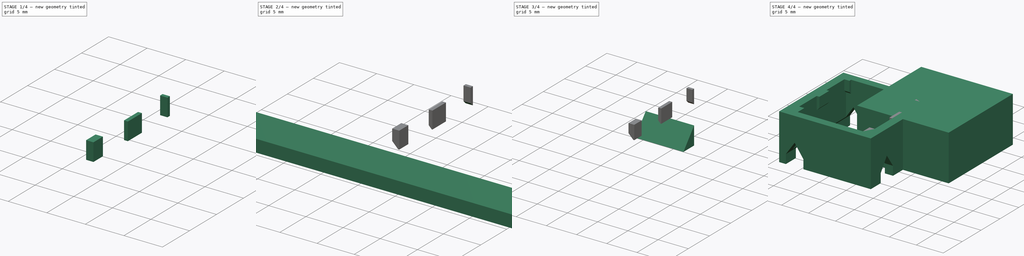
[diagram: build sequence overview — one tinted view per stage of 4, left to right]
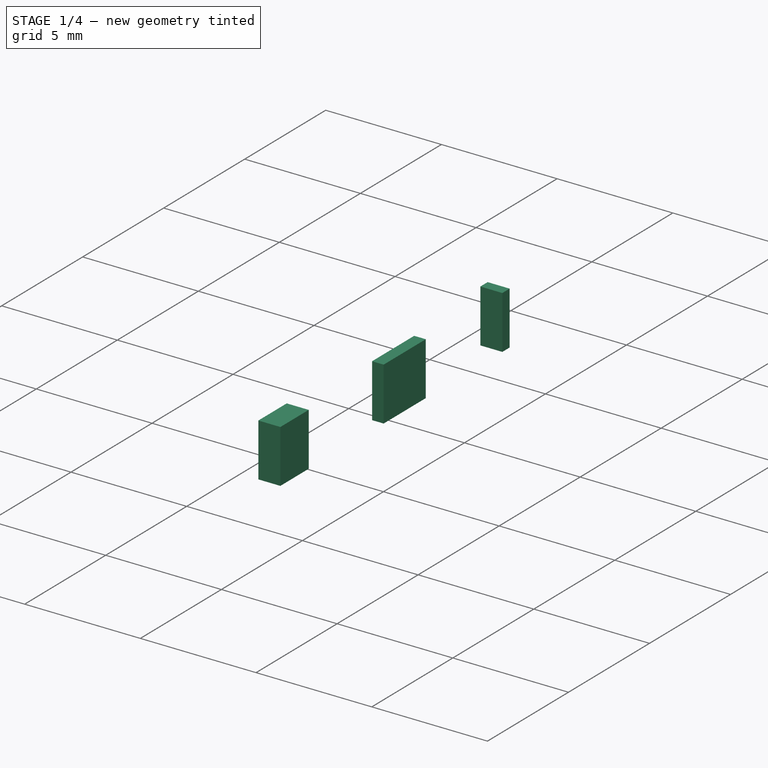
[diagram: stage 1 of 4 — iso view after this stage's code; geometry added in this stage tinted green]
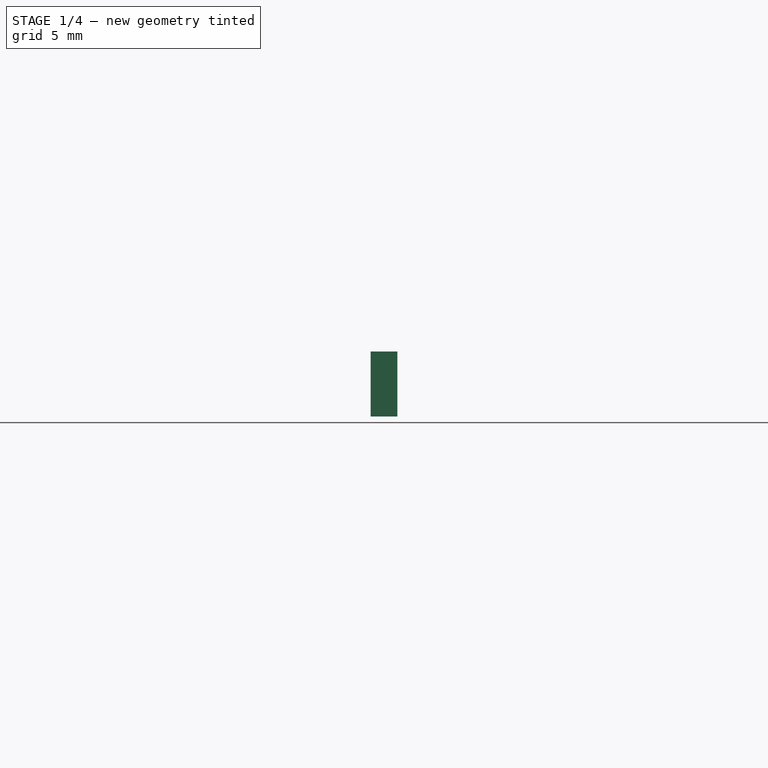
[diagram: stage 1 of 4 — front view after this stage's code; geometry added in this stage tinted green]
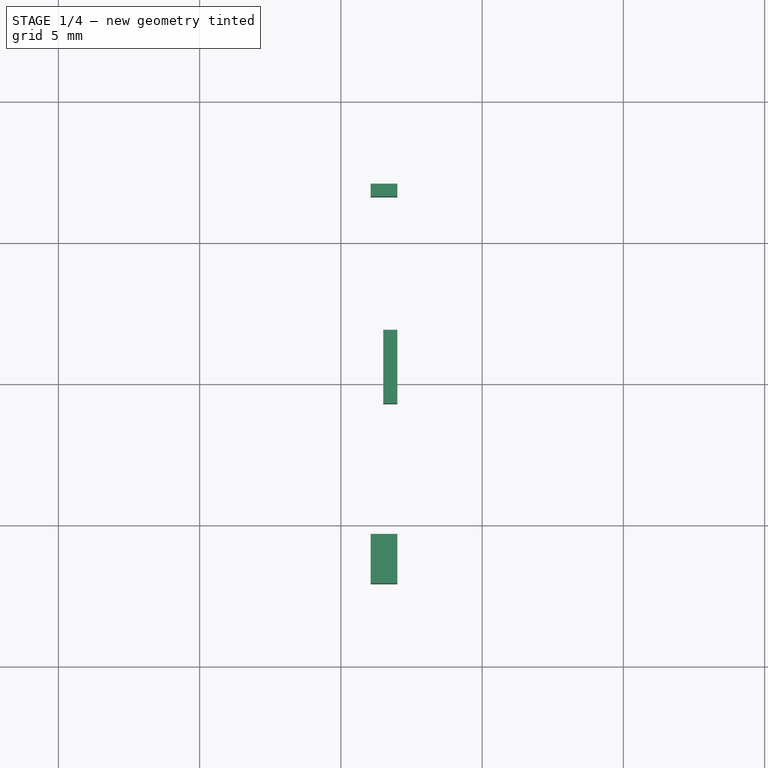
[diagram: stage 1 of 4 — top view after this stage's code; geometry added in this stage tinted green]
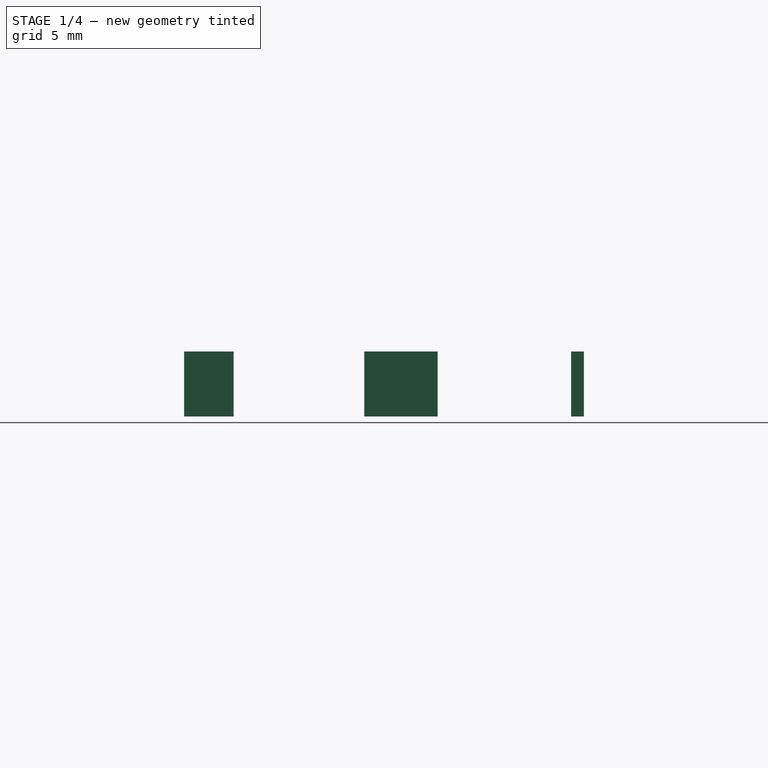
[diagram: stage 1 of 4 — right view after this stage's code; geometry added in this stage tinted green]
FCSTD DOCUMENT  (FreeCAD 1.0R39109 (Git))
Label: milli-ergo-drafting
License: All rights reserved
LicenseURL: https://en.wikipedia.org/wiki/All_rights_reserved
objects: Sketcher::SketchObject×5, Part::Extrusion×4, Part::Cut×3, Part::FeaturePython×2, PartDesign::AdditiveBox×1, Spreadsheet::Sheet×1, PartDesign::Body×1, Part::Box×1, Part::Chamfer×1, Part::Mirroring×1, App::Link×1, Part::MultiFuse×1, App::Part×1
note: 27 computed .brp shape members not serialized (recipe doc carries the construction recipe); baked Part::Feature solids carry a one-line shape summary decoded from their .brp

FEATURE [Spreadsheet::Sheet] Spreadsheet  label="ref"
  cells = B2(x)==8.5 * 2 mm; B3(y)==17 mm; B4(z)==8.5 mm
FEATURE [Sketcher::SketchObject] Sketch
  ArcFitTolerance = 1e-06
  AttachmentSupport = -> [Box]
  ExternalGeometry = -> [Box]
  FullyConstrained = false
  MakeInternals = false
  MapMode = 5
  Placement = pos=(0,0,8.5) rot=(0,0,1;0rad)
  sketch-geometry (12):
    g0: LineSegment [constr] StartX=0 StartY=17 StartZ=0 EndX=0 EndY=0 EndZ=0
    g1: LineSegment [constr] StartX=0 StartY=0 StartZ=0 EndX=17 EndY=0 EndZ=0
    g2: LineSegment [constr] StartX=17 StartY=0 StartZ=0 EndX=17 EndY=17 EndZ=0
    g3: LineSegment [constr] StartX=17 StartY=17 StartZ=0 EndX=0 EndY=17 EndZ=0
    g4: LineSegment StartX=15.5 StartY=15.5 StartZ=0 EndX=1.5 EndY=15.5 EndZ=0
    g5: LineSegment StartX=1.5 StartY=15.5 StartZ=0 EndX=1.5 EndY=1.5 EndZ=0
    g6: LineSegment StartX=1.5 StartY=1.5 StartZ=0 EndX=15.5 EndY=1.5 EndZ=0
    g7: LineSegment StartX=15.5 StartY=1.5 StartZ=0 EndX=15.5 EndY=15.5 EndZ=0
    g8: LineSegment [constr] StartX=12.5 StartY=15.5 StartZ=0 EndX=12.5 EndY=17 EndZ=0
    g9: LineSegment [constr] StartX=1.5 StartY=12.4999 StartZ=0 EndX=0 EndY=12.4999 EndZ=0
    g10: LineSegment [constr] StartX=1.5 StartY=1.5 StartZ=0 EndX=1.5 EndY=0 EndZ=0
    g11: LineSegment [constr] StartX=15.5 StartY=1.50013 StartZ=0 EndX=17 EndY=1.50013 EndZ=0
  constraints (34):
    c: Coincident(g0,g1)
    c: Coincident(g1,g2)
    c: Coincident(g2,g3)
    c: Coincident(g3,g0)
    c: Vertical(g0)
    c: Vertical(g2)
    c: Horizontal(g1)
    c: Horizontal(g3)
    c: Coincident(g0,g-5)
    c: Coincident(g1,g-6)
    c: Coincident(g4,g5)
    c: Coincident(g4,g7)
    c: Coincident(g5,g6)
    c: Coincident(g6,g7)
    c: Perpendicular(g8,g4)
    c: PointOnObject(g8,g4)
    c: PointOnObject(g8,g3)
    c: Perpendicular(g9,g5)
    c: PointOnObject(g9,g5)
    c: PointOnObject(g9,g0)
    c: Perpendicular(g10,g6)
    c: PointOnObject(g10,g6)
    c: PointOnObject(g10,g1)
    c: Perpendicular(g11,g7)
    c: PointOnObject(g11,g7)
    c: PointOnObject(g11,g2)
    c: Parallel(g7,g2)
    c: Parallel(g4,g3)
    c: Parallel(g5,g0)
    c: Equal(g9,g8)
    c: Parallel(g6,g1)
    c: Equal(g10,g8)
    c: Equal(g11,g8)
    c: Distance(g8) = 1.5
FEATURE [PartDesign::Body] Body
  AllowCompound = false
  Group = -> [Box,Sketch]
  Origin = -> Origin
  Tip = -> Box
FEATURE [Part::Box] Box001  label="Cube"
  AttacherType = Attacher::AttachEngine3D
  Height = 8.5
  Length = 17
  Placement = pos=(-8.5,-8.5,0) rot=(0,0,1;0rad)
  Width = 17
  expr: .Placement.Base.x = -<<ref>>.x / 2
  expr: .Placement.Base.y = -<<ref>>.y / 2
  expr: Height = <<ref>>.z
  expr: Length = <<ref>>.x
  expr: Width = <<ref>>.y
FEATURE [Sketcher::SketchObject] Sketch001
  ArcFitTolerance = 1e-06
  AttachmentSupport = -> [Box001]
  ExternalGeometry = -> [Box001]
  FullyConstrained = false
  MakeInternals = false
  MapMode = 5
  Placement = pos=(-8.5,-8.5,8.5) rot=(0,0,1;0rad)
  expr: Constraints[18] = 8.5 - 7
  sketch-geometry (12):
    g0: LineSegment [constr] StartX=17 StartY=17 StartZ=0 EndX=0 EndY=17 EndZ=0
    g1: LineSegment [constr] StartX=0 StartY=17 StartZ=0 EndX=0 EndY=0 EndZ=0
    g2: LineSegment [constr] StartX=0 StartY=0 StartZ=0 EndX=17 EndY=0 EndZ=0
    g3: LineSegment [constr] StartX=17 StartY=0 StartZ=0 EndX=17 EndY=17 EndZ=0
    g4: LineSegment StartX=15.5 StartY=1.425 StartZ=0 EndX=15.5 EndY=15.575 EndZ=0
    g5: LineSegment StartX=15.5 StartY=15.575 StartZ=0 EndX=1.5 EndY=15.575 EndZ=0
    g6: LineSegment StartX=1.5 StartY=15.575 StartZ=0 EndX=1.5 EndY=1.425 EndZ=0
    g7: LineSegment StartX=1.5 StartY=1.425 StartZ=0 EndX=15.5 EndY=1.425 EndZ=0
    g8: LineSegment [constr] StartX=6.97157 StartY=15.575 StartZ=0 EndX=6.97157 EndY=17 EndZ=0
    g9: LineSegment [constr] StartX=6.78822 StartY=1.425 StartZ=0 EndX=6.78822 EndY=0 EndZ=0
    g10: LineSegment [constr] StartX=0 StartY=6.49961 StartZ=0 EndX=1.5 EndY=6.49961 EndZ=0
    g11: LineSegment [constr] StartX=15.5 StartY=11.1537 StartZ=0 EndX=17 EndY=11.1537 EndZ=0
  constraints (35):
    c: Coincident(g0,g1)
    c: Coincident(g1,g2)
    c: Coincident(g2,g3)
    c: Coincident(g3,g0)
    c: Horizontal(g0)
    c: Horizontal(g2)
    c: Vertical(g1)
    c: Vertical(g3)
    c: Coincident(g0,g-4)
    c: Coincident(g1,g-1)
    c: Coincident(g4,g5)
    c: Coincident(g4,g7)
    c: Coincident(g5,g6)
    c: Coincident(g6,g7)
    c: Parallel(g7,g2)
    c: Parallel(g4,g3)
    c: Parallel(g5,g0)
    c: Parallel(g6,g1)
    c: Distance(g3,g4) = 1.5
    c: Distance(g0,g5) = 1.425
    c: PointOnObject(g8,g5)
    c: PointOnObject(g8,g0)
    c: Vertical(g8)
    c: PointOnObject(g9,g7)
    c: PointOnObject(g9,g2)
    c: PointOnObject(g10,g1)
    c: PointOnObject(g10,g6)
    c: Horizontal(g10)
    c: PointOnObject(g11,g4)
    c: PointOnObject(g11,g3)
    c: Horizontal(g11)
    c: Vertical(g9)
    c: Equal(g9,g8)
    c: Equal(g10,g11)
    c: Distance(g10,g10) = 1.5
FEATURE [Part::Extrusion] Extrude
  Base = -> Sketch001
  Dir = (0,0,1)
  DirMode = 2
  FaceMakerClass = Part::FaceMakerBullseye
  FaceMakerMode = 3
  LengthFwd = 10
  LengthRev = 0
  Reversed = true
  Solid = true
  Symmetric = false
FEATURE [Part::Cut] Cut
  Base = -> Box001
  Refine = true
  Tool = -> Extrude
FEATURE [Sketcher::SketchObject] Sketch002
  ArcFitTolerance = 1e-06
  AttachmentSupport = -> [Cut]
  ExternalGeometry = -> [Cut]
  FullyConstrained = true
  MakeInternals = false
  MapMode = 5
  Placement = pos=(0,0,8.5) rot=(0,0,1;0rad)
  sketch-geometry (12):
    g0: LineSegment StartX=7 StartY=7.075 StartZ=0 EndX=6.05 EndY=7.075 EndZ=0
    g1: LineSegment StartX=6.05 StartY=7.075 StartZ=0 EndX=6.05 EndY=6.625 EndZ=0
    g2: LineSegment StartX=6.05 StartY=6.625 StartZ=0 EndX=7 EndY=6.625 EndZ=0
    g3: LineSegment StartX=7 StartY=6.625 StartZ=0 EndX=7 EndY=7.075 EndZ=0
    g4: LineSegment StartX=7 StartY=1.9 StartZ=0 EndX=6.5 EndY=1.9 EndZ=0
    g5: LineSegment StartX=6.5 StartY=1.9 StartZ=0 EndX=6.5 EndY=-0.7 EndZ=0
    g6: LineSegment StartX=6.5 StartY=-0.7 StartZ=0 EndX=7 EndY=-0.7 EndZ=0
    g7: LineSegment StartX=7 StartY=-0.7 StartZ=0 EndX=7 EndY=1.9 EndZ=0
    g8: LineSegment StartX=7 StartY=-7.075 StartZ=0 EndX=7 EndY=-5.325 EndZ=0
    g9: LineSegment StartX=7 StartY=-5.325 StartZ=0 EndX=6.05 EndY=-5.325 EndZ=0
    g10: LineSegment StartX=6.05 StartY=-5.325 StartZ=0 EndX=6.05 EndY=-7.075 EndZ=0
    g11: LineSegment StartX=6.05 StartY=-7.075 StartZ=0 EndX=7 EndY=-7.075 EndZ=0
  constraints (34):
    c: Coincident(g0,g1)
    c: Coincident(g1,g2)
    c: Coincident(g2,g3)
    c: Coincident(g3,g0)
    c: Horizontal(g0)
    c: Horizontal(g2)
    c: Vertical(g1)
    c: Vertical(g3)
    c: Coincident(g0,g-4)
    c: Coincident(g4,g5)
    c: Coincident(g5,g6)
    c: Coincident(g6,g7)
    c: Coincident(g7,g4)
    c: Horizontal(g4)
    c: Horizontal(g6)
    c: Vertical(g5)
    c: Vertical(g7)
    c: PointOnObject(g4,g-4)
    c: Coincident(g8,g9)
    c: Coincident(g9,g10)
    c: Coincident(g10,g11)
    c: Coincident(g11,g8)
    c: Vertical(g8)
    c: Vertical(g10)
    c: Horizontal(g9)
    c: Horizontal(g11)
    c: Coincident(g8,g-5)
    c: Distance(g0,g0) = 0.95
    c: DistanceY(g3,g3) = 0.45
    c: Distance(g4,g4) = 0.5
    c: Vertical(g9,g1)
    c: Distance(g8,g8) = 1.75
    c: DistanceY(g5,g1) = 7.325
    c: Distance(g4,g9) = 7.225
FEATURE [Part::Extrusion] Extrude001
  Base = -> Sketch002
  Dir = (0,0,1)
  DirMode = 2
  FaceMakerClass = Part::FaceMakerSimple
  FaceMakerMode = 0
  LengthFwd = 2.3
  LengthRev = 0
  Reversed = true
  Solid = true
  Symmetric = false
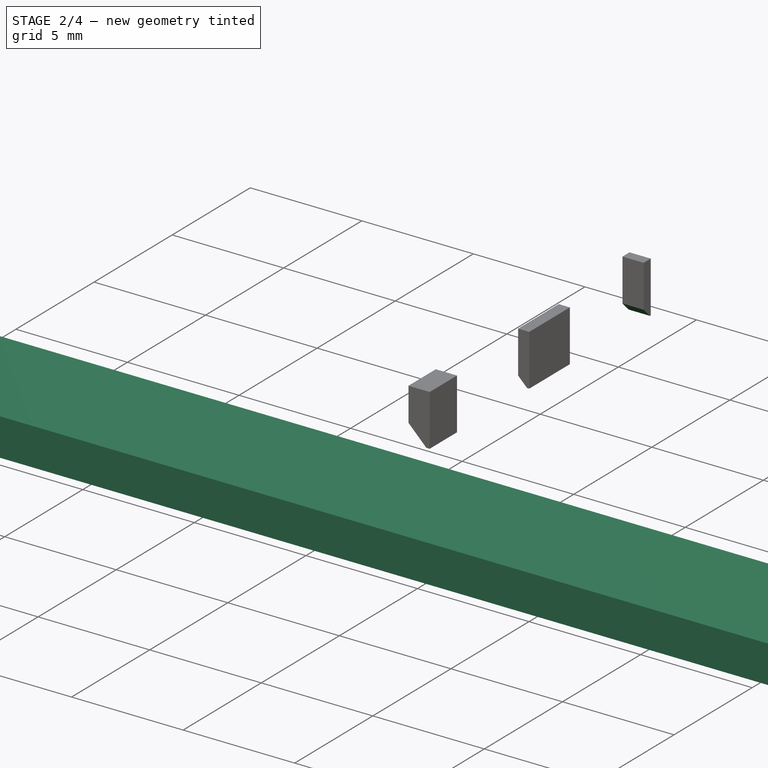
[diagram: stage 2 of 4 — iso view after this stage's code; geometry added in this stage tinted green]
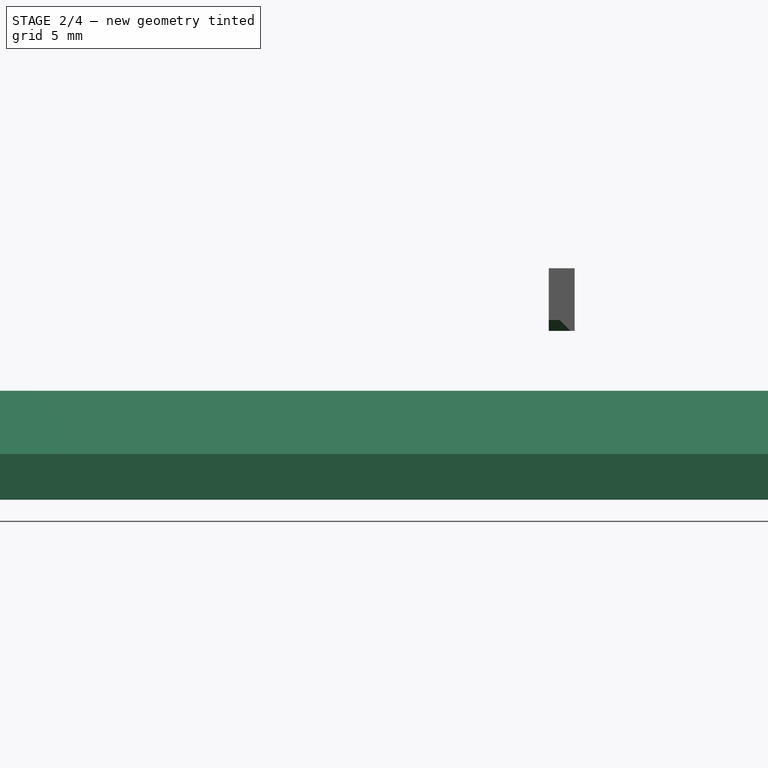
[diagram: stage 2 of 4 — front view after this stage's code; geometry added in this stage tinted green]
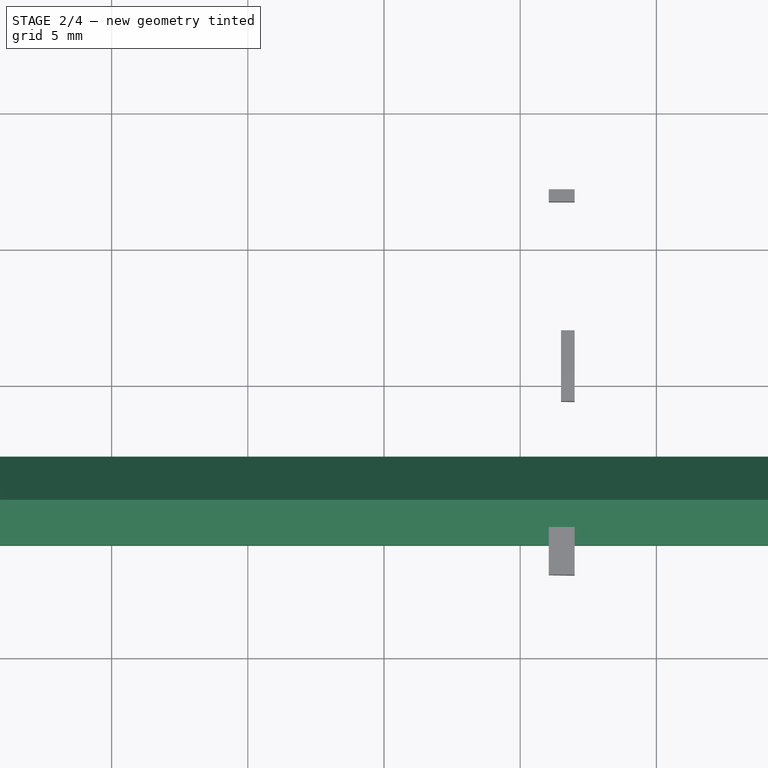
[diagram: stage 2 of 4 — top view after this stage's code; geometry added in this stage tinted green]
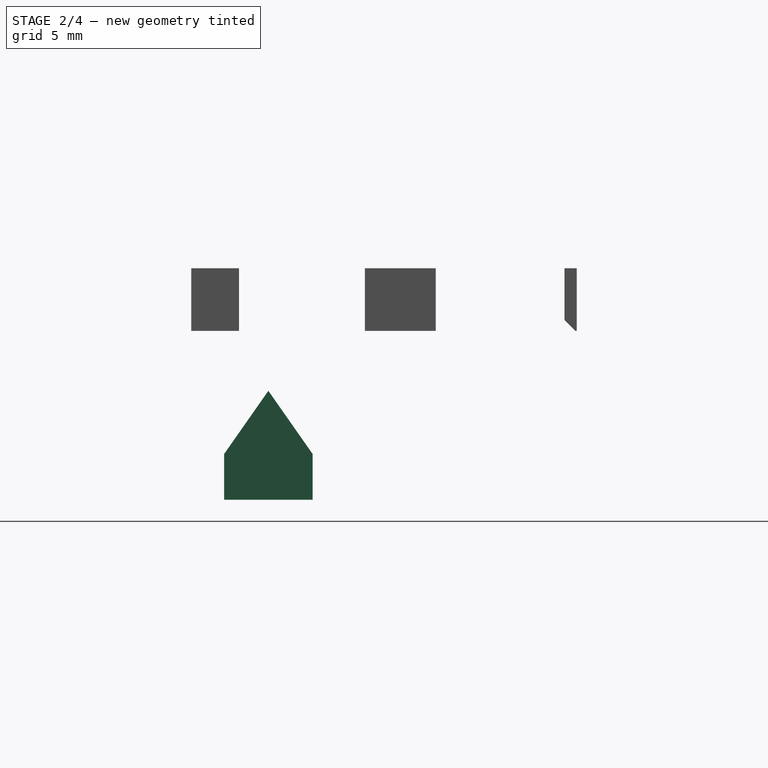
[diagram: stage 2 of 4 — right view after this stage's code; geometry added in this stage tinted green]
FEATURE [Part::Chamfer] Chamfer
  Base = -> Extrude001
  EdgeLinks = -> Extrude001 [Edge10,Edge19,Edge34]
  Edges = 3 edges: [Edge10 r=0.4,Edge19 r=0.4,Edge34 r=0.8]
FEATURE [Sketcher::SketchObject] Sketch004
  ArcFitTolerance = 1e-06
  ExternalGeometry = -> [Cut]
  FullyConstrained = true
  MakeInternals = false
  Placement = pos=(0,0,0) rot=(1,0,0;1.5708rad)
  expr: .Placement.Base.x = 0
  expr: .Placement.Base.y = 0
  sketch-geometry (8):
    g0: LineSegment StartX=-8.5 StartY=0 StartZ=0 EndX=-5.25 EndY=0 EndZ=0
    g1: LineSegment StartX=-5.25 StartY=0 StartZ=0 EndX=-5.25 EndY=1.67926 EndZ=0
    g2: LineSegment StartX=-5.25 StartY=1.67926 StartZ=0 EndX=-6.875 EndY=4 EndZ=0
    g3: LineSegment StartX=-6.875 StartY=4 StartZ=0 EndX=-8.5 EndY=1.67926 EndZ=0
    g4: LineSegment StartX=-8.5 StartY=1.67926 StartZ=0 EndX=-8.5 EndY=0 EndZ=0
    g5: LineSegment [constr] StartX=-8.5 StartY=1.67926 StartZ=0 EndX=-5.25 EndY=1.67926 EndZ=0
    g6: LineSegment [constr] StartX=-5.25 StartY=1.67926 StartZ=0 EndX=-6.875 EndY=1.67926 EndZ=0
    g7: LineSegment [constr] StartX=-6.875 StartY=1.67926 StartZ=0 EndX=-6.875 EndY=4 EndZ=0
  constraints (20):
    c: Coincident(g0,g1)
    c: Vertical(g1)
    c: Coincident(g1,g2)
    c: Coincident(g2,g3)
    c: Coincident(g3,g4)
    c: Coincident(g4,g0)
    c: Vertical(g4)
    c: Coincident(g3,g5)
    c: Coincident(g5,g1)
    c: Horizontal(g5)
    c: Coincident(g5,g6)
    c: Symmetric(g5,g5,g6)
    c: Coincident(g6,g7)
    c: Coincident(g7,g2)
    c: Vertical(g7)
    c: Angle(g2,g5) = 0.959931
    c: DistanceY(g0,g2) = 4
    c: DistanceX(g0,g0) = 3.25
    c: Horizontal(g0)
    c: Coincident(g0,g-4)
FEATURE [Part::Extrusion] Extrude002
  Base = -> Sketch004
  Dir = (0,-1,2e-16)
  DirMode = 2
  FaceMakerClass = Part::FaceMakerBullseye
  FaceMakerMode = 3
  LengthFwd = 50
  LengthRev = 0
  Placement = pos=(0,2.63,0) rot=(0,0,1;1.5708rad)
  Solid = true
  Symmetric = true
  expr: .Placement.Base.x = 0
  expr: .Placement.Base.y = 2.63
FEATURE [Part::FeaturePython] Clone001  label="Chamfer001"  # Draft clone (typed FeaturePython)
  AttacherType = Attacher::AttachEngine3D
  Fuse = false
  Objects = -> [Chamfer]
  Scale = (1,1,1)
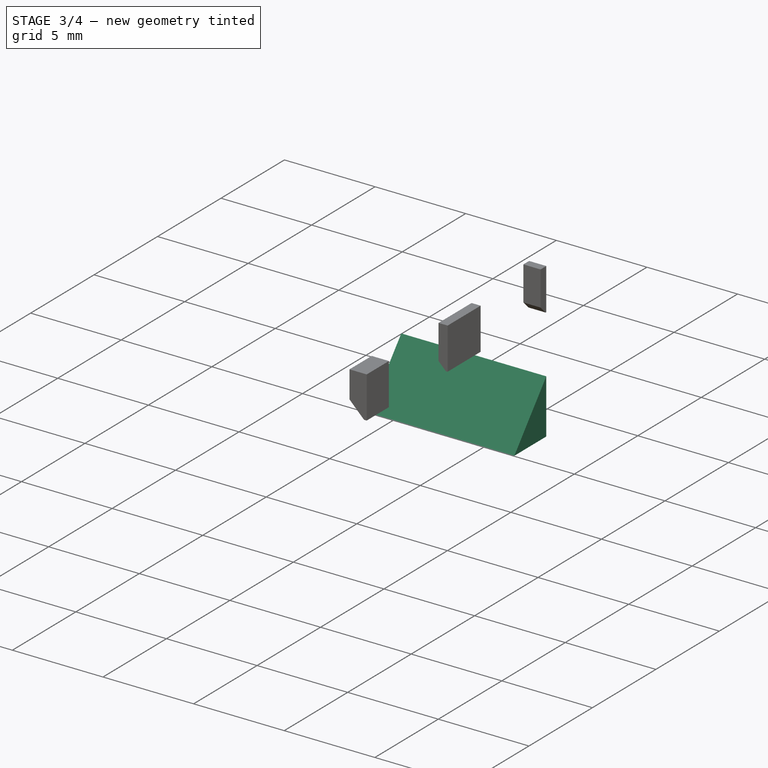
[diagram: stage 3 of 4 — iso view after this stage's code; geometry added in this stage tinted green]
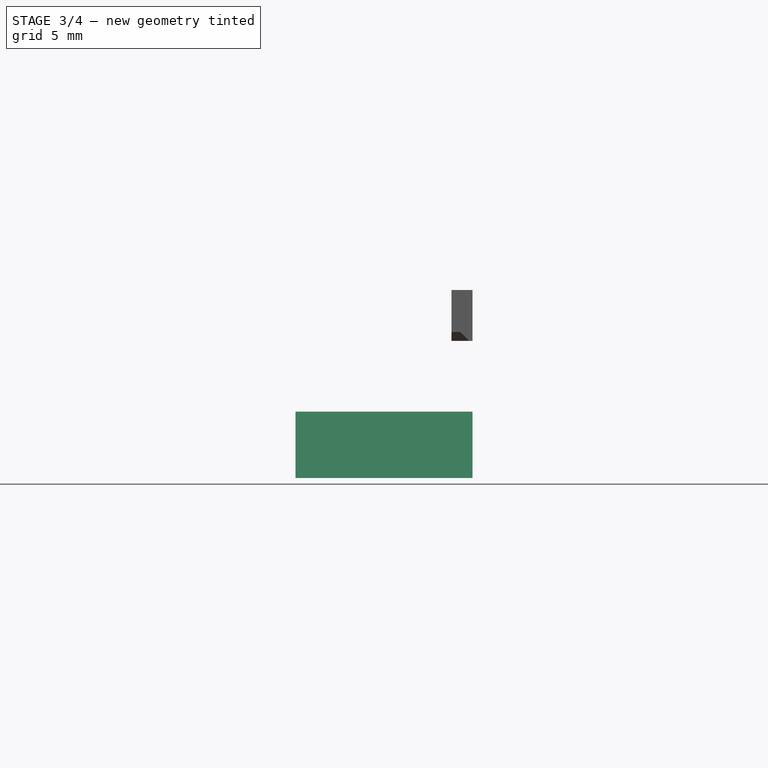
[diagram: stage 3 of 4 — front view after this stage's code; geometry added in this stage tinted green]
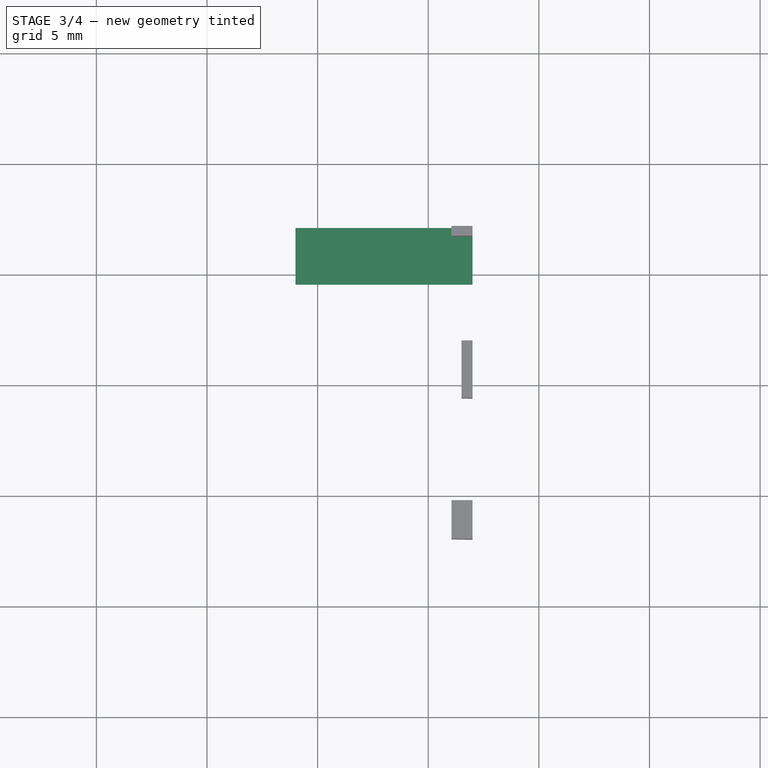
[diagram: stage 3 of 4 — top view after this stage's code; geometry added in this stage tinted green]
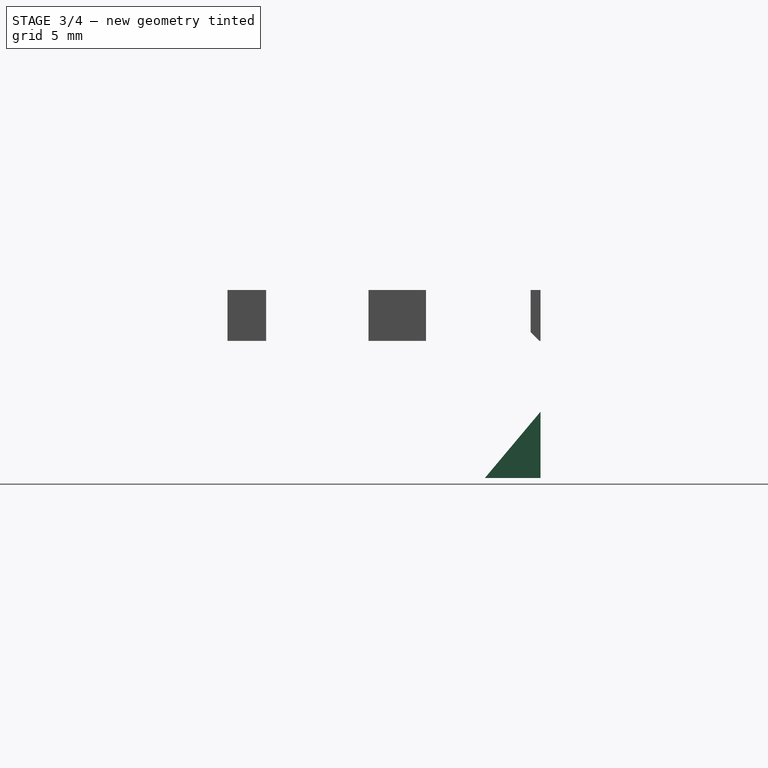
[diagram: stage 3 of 4 — right view after this stage's code; geometry added in this stage tinted green]
FEATURE [App::Link] Link  label="Extrude003"
  LinkPlacement = pos=(1.25,0,0) rot=(0,0,1;0rad)
  LinkedObject = -> Extrude002
  Placement = pos=(1.25,0,0) rot=(0,0,1;0rad)
FEATURE [Part::Cut] Cut001
  Base = -> Cut
  Refine = true
  Tool = -> Extrude002
FEATURE [Part::Cut] Cut002
  Base = -> Cut001
  Refine = true
  Tool = -> Link
FEATURE [Sketcher::SketchObject] Sketch005
  ArcFitTolerance = 1e-06
  AttachmentSupport = -> [Cut002]
  ExternalGeometry = -> [Cut002,Sketch001]
  FullyConstrained = false
  MakeInternals = false
  MapMode = 5
  Placement = pos=(7,0,0) rot=(0.57735,-0.57735,-0.57735;2.0944rad)
  sketch-geometry (5):
    g0: Circle [constr] CenterX=0 CenterY=8.5 CenterZ=0 NormalX=0 NormalY=0 NormalZ=1 AngleXU=0 Radius=2.5
    g1: LineSegment [constr] StartX=-7.075 StartY=3 StartZ=0 EndX=2.95379 EndY=3 EndZ=0
    g2: LineSegment StartX=-7.075 StartY=3 StartZ=0 EndX=-4.5577 EndY=0 EndZ=0
    g3: LineSegment StartX=-7.075 StartY=0 StartZ=0 EndX=-7.075 EndY=3 EndZ=0
    g4: LineSegment StartX=-4.5577 StartY=0 StartZ=0 EndX=-7.075 EndY=0 EndZ=0
  constraints (12):
    c: Diameter(g0) = 5
    c: Symmetric(g-5,g-5,g0)
    c: PointOnObject(g1,g-4)
    c: Horizontal(g1)
    c: Distance(g-3,g1) = 3
    c: Coincident(g2,g1)
    c: PointOnObject(g2,g-3)
    c: Coincident(g3,g-4)
    c: Coincident(g3,g1)
    c: Angle(g2,g1) = 0.872665
    c: Coincident(g2,g4)
    c: Coincident(g4,g3)
FEATURE [Part::Extrusion] Extrude003  label="Extrude004"
  AttacherType = Attacher::AttachEngine3D
  Base = -> Sketch005
  Dir = (-1,0,0)
  DirMode = 2
  FaceMakerClass = Part::FaceMakerBullseye
  FaceMakerMode = 3
  LengthFwd = 8
  LengthRev = 0
  Solid = true
  Symmetric = false
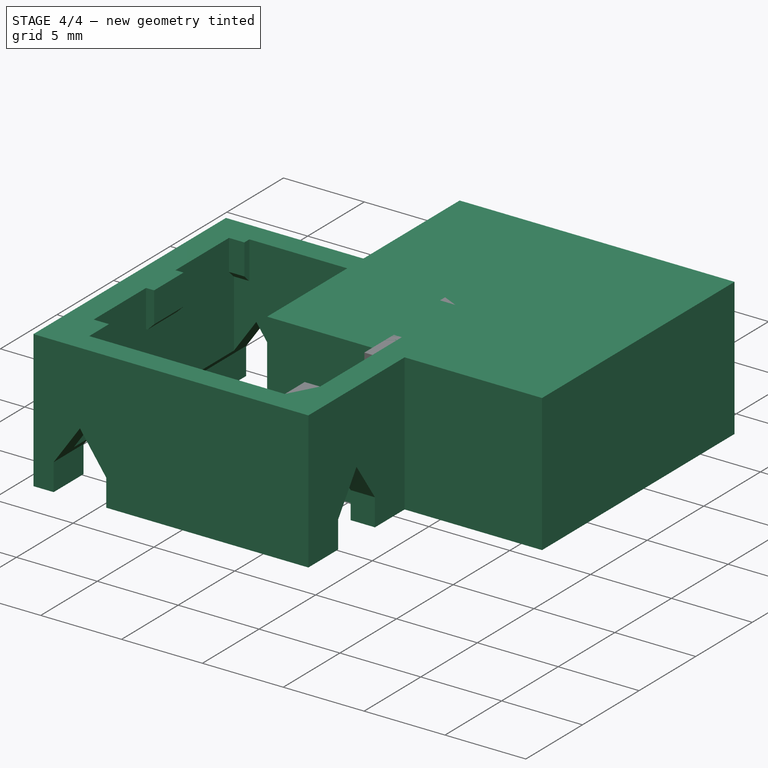
[diagram: stage 4 of 4 — iso view after this stage's code; geometry added in this stage tinted green]
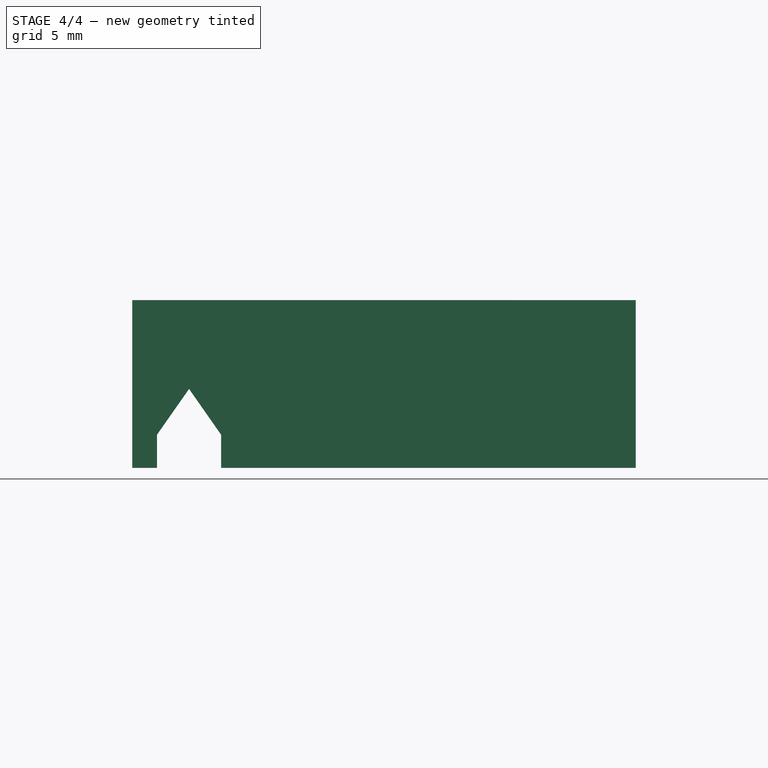
[diagram: stage 4 of 4 — front view after this stage's code; geometry added in this stage tinted green]
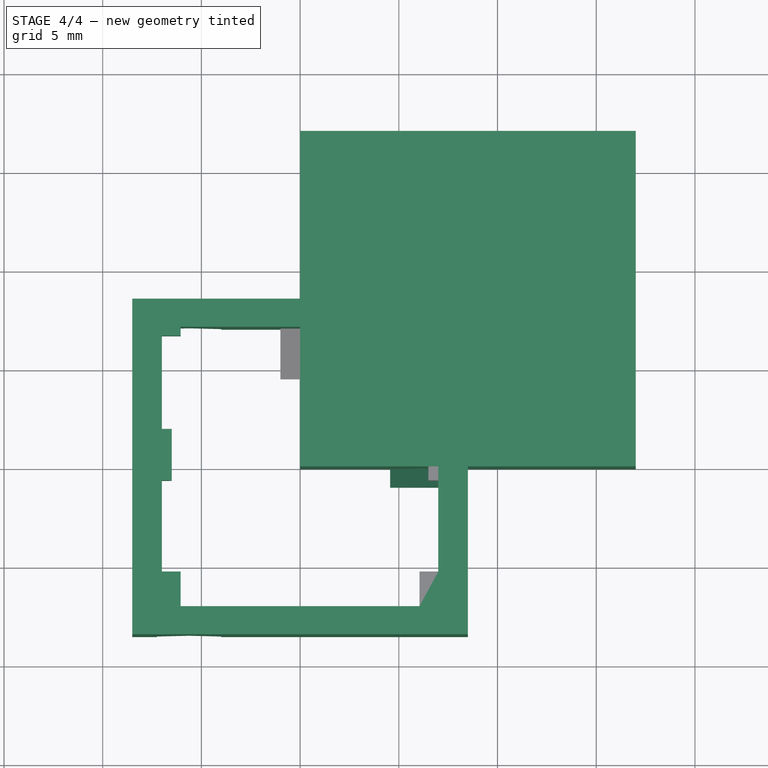
[diagram: stage 4 of 4 — top view after this stage's code; geometry added in this stage tinted green]
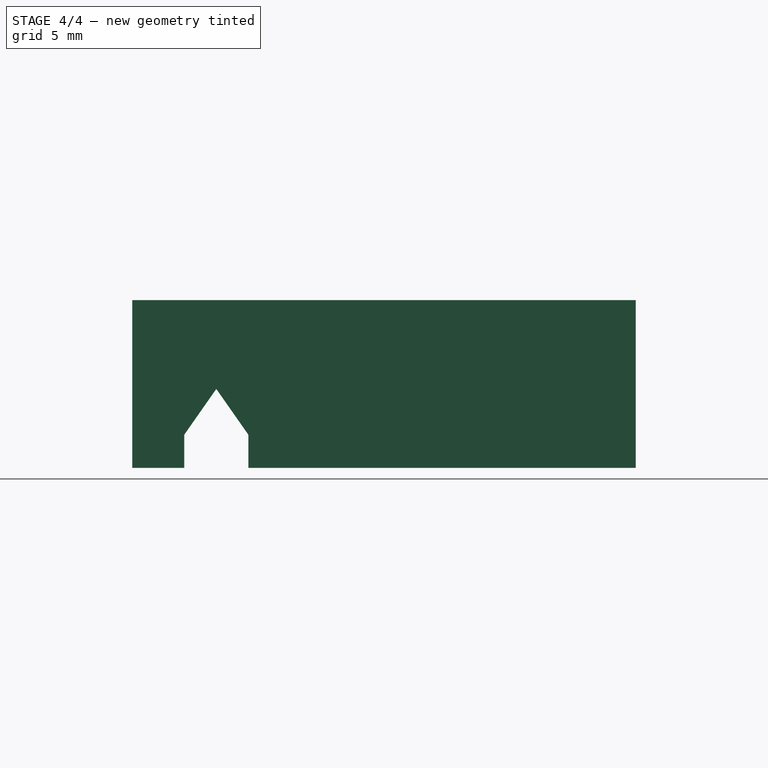
[diagram: stage 4 of 4 — right view after this stage's code; geometry added in this stage tinted green]
FEATURE [PartDesign::AdditiveBox] Box
  AttacherType = Attacher::AttachEngine3D
  Height = 8.5
  Length = 17
  Refine = true
  Suppressed = false
  Width = 17
  expr: Height = <<ref>>.z
  expr: Length = <<ref>>.x
  expr: Width = <<ref>>.y
FEATURE [Part::Mirroring] Part__Mirroring  label="Chamfer (Mirror #1)"
  Base = (0,0,0)
  Normal = (1,0,0)
  Source = -> Chamfer
FEATURE [Part::FeaturePython] Clone  label="Extrude005"  # Draft clone (typed FeaturePython)
  AttacherType = Attacher::AttachEngine3D
  Fuse = false
  Objects = -> [Extrude003]
  Placement = pos=(1.3e-15,6.07,0) rot=(0,0,1;-1.5708rad)
  Scale = (1,1,1)
FEATURE [Part::MultiFuse] Fusion
  Refine = true
  Shapes = -> [Extrude003,Cut002,Part__Mirroring,Clone,Clone001]
FEATURE [App::Part] Part  label="keymount"
  Group = -> [Box001,Extrude003,Part__Mirroring,Link,Extrude002,Cut,Clone,Sketch005,Cut001,Extrude001,Cut002,Sketch001,Sketch002,Sketch004,Chamfer,Extrude,Fusion]
  Origin = -> Origin001
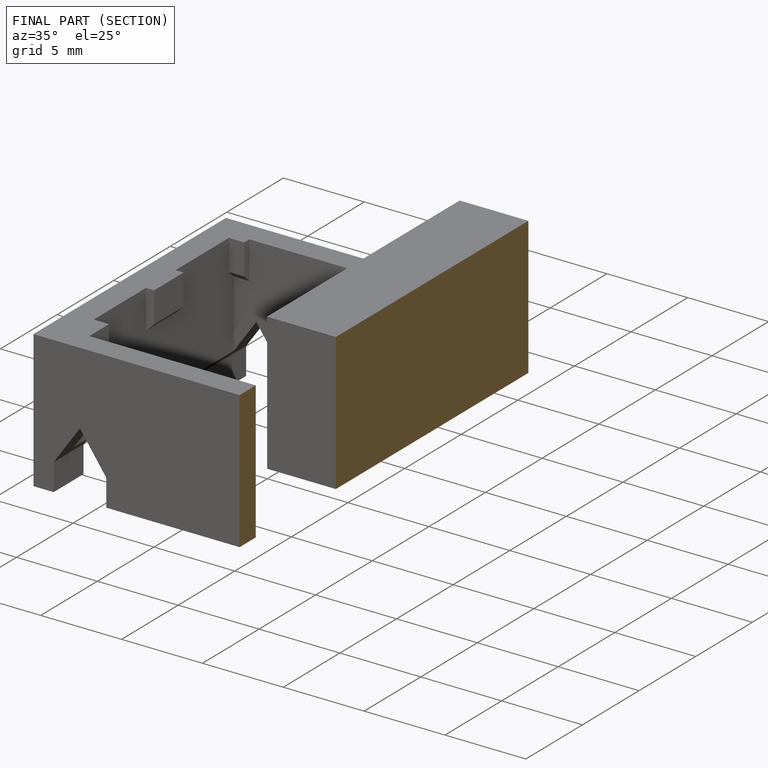
[diagram: finished part — half-section view (interior)]
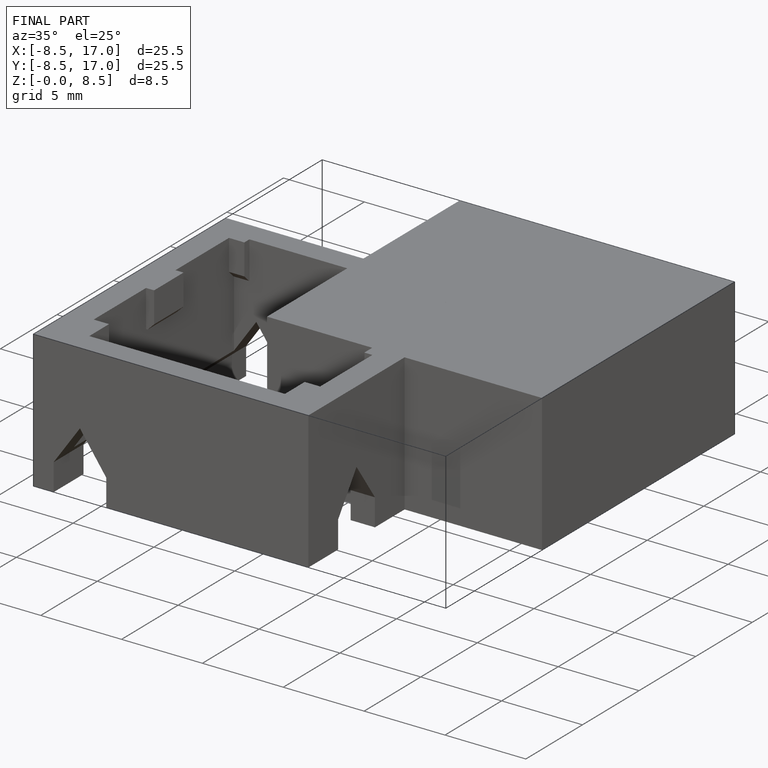
[diagram: finished part — iso view with bounding-box wireframe]
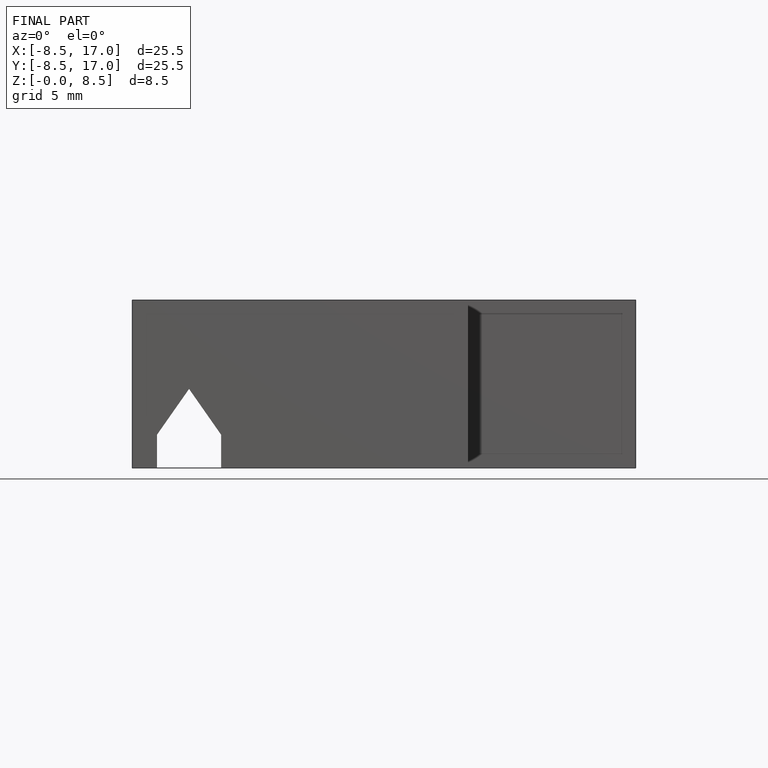
[diagram: finished part — front view with bounding-box wireframe]
